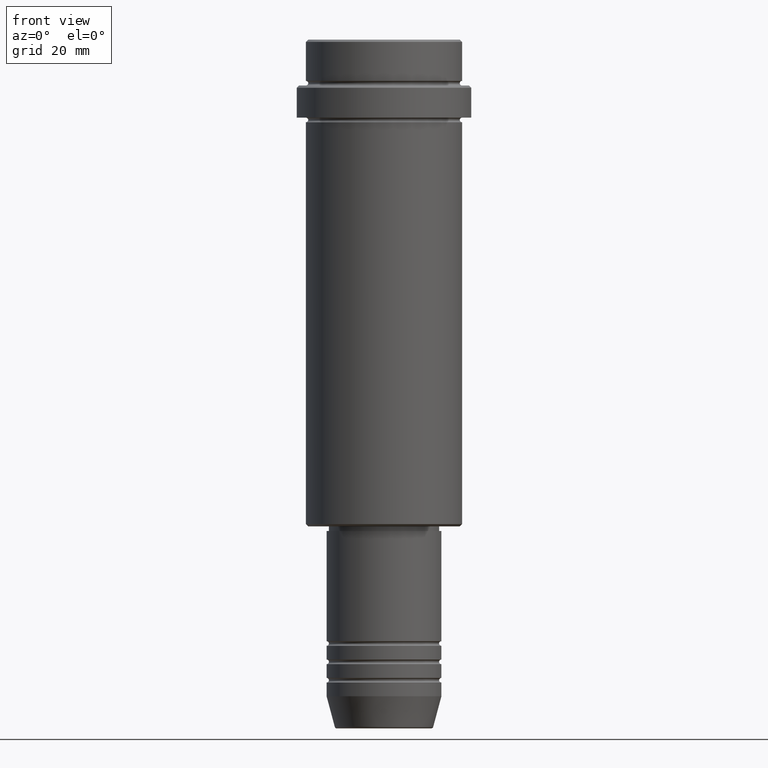
[diagram: clean part render]
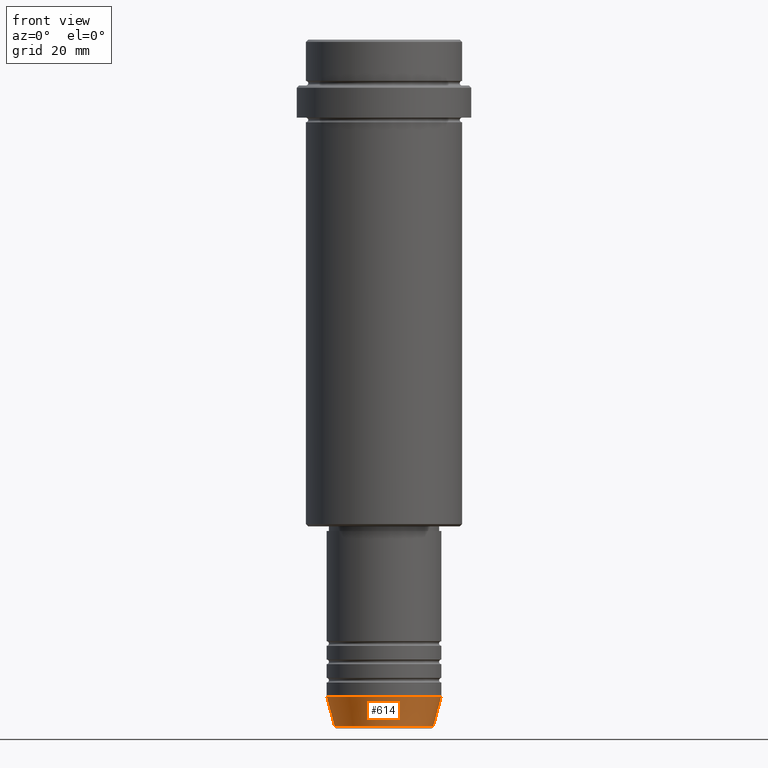
[diagram: same view with one face highlighted and labeled with its STEP entity id]
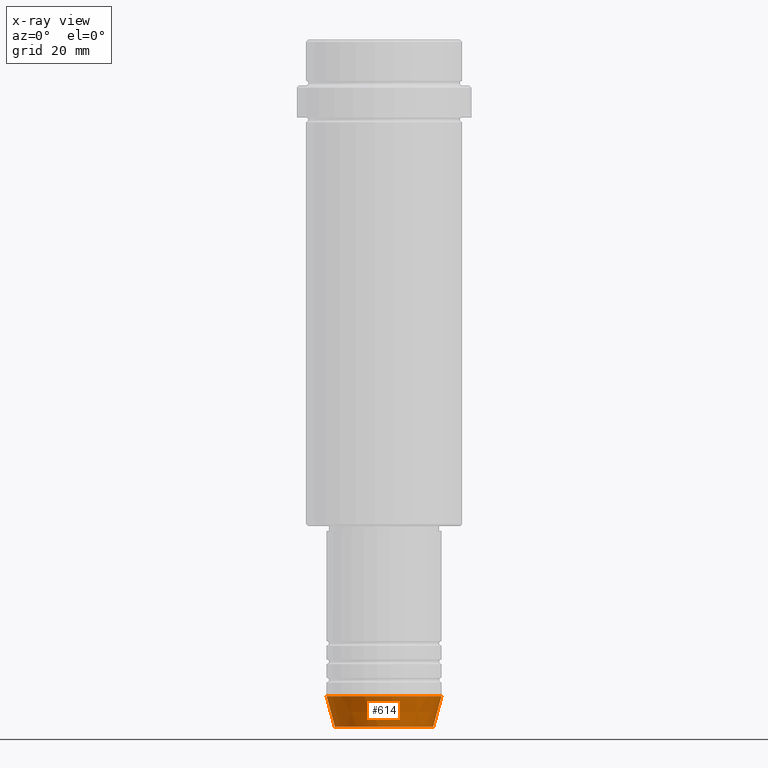
[diagram: x-ray of the same camera — body ghosted, the highlighted face saturated]
A machine part, front view. The second image highlights one B-rep face of the part: STEP entity #614.
The next image is the same camera in x-ray: the body ghosted, the highlighted face saturated — about 0% of this face is hidden behind the body in this view.
In plain terms, the highlighted conical surface has half-angle 15 deg.
Its self-contained STEP definition (entity closure, byte-faithful):
#18 = LINE ( 'NONE', #444, #143 ) ;
#27 = EDGE_LOOP ( 'NONE', ( #1320, #1271, #886, #752 ) ) ;
#132 = DIRECTION ( 'NONE',  ( -0.000000000000000000, -0.000000000000000000, 1.000000000000000000 ) ) ;
#140 = DIRECTION ( 'NONE',  ( 1.000000000000000000, 0.000000000000000000, 0.000000000000000000 ) ) ;
#143 = VECTOR ( 'NONE', #882, 1000.000000000000000 ) ;
#146 = CARTESIAN_POINT ( 'NONE',  ( -12.50000000000000000, 1.530808498934191521E-15, -143.0000000000000284 ) ) ;
#172 = LINE ( 'NONE', #845, #595 ) ;
#192 = CARTESIAN_POINT ( 'NONE',  ( -10.72365507213718416, 1.422038742429750121E-15, -149.6294095225512990 ) ) ;
#225 = VERTEX_POINT ( 'NONE', #926 ) ;
#232 = CIRCLE ( 'NONE', #302, 10.72365507213718416 ) ;
#302 = AXIS2_PLACEMENT_3D ( 'NONE', #496, #714, #1046 ) ;
#369 = EDGE_CURVE ( 'NONE', #1151, #1330, #232, .T. ) ;
#379 = DIRECTION ( 'NONE',  ( -0.2588190451025213501, 3.169619151431772337E-17, 0.9659258262890680902 ) ) ;
#382 = AXIS2_PLACEMENT_3D ( 'NONE', #852, #1210, #445 ) ;
#444 = CARTESIAN_POINT ( 'NONE',  ( 12.50000000000000000, 0.000000000000000000, -143.0000000000000284 ) ) ;
#445 = DIRECTION ( 'NONE',  ( 1.000000000000000000, 0.000000000000000000, 0.000000000000000000 ) ) ;
#496 = CARTESIAN_POINT ( 'NONE',  ( 0.000000000000000000, 0.000000000000000000, -149.6294095225512990 ) ) ;
#502 = CIRCLE ( 'NONE', #1307, 12.50000000000000000 ) ;
#510 = EDGE_CURVE ( 'NONE', #855, #225, #502, .T. ) ;
#595 = VECTOR ( 'NONE', #379, 1000.000000000000000 ) ;
#614 = ADVANCED_FACE ( 'NONE', ( #1407 ), #1129, .T. ) ;
#714 = DIRECTION ( 'NONE',  ( -0.000000000000000000, -0.000000000000000000, 1.000000000000000000 ) ) ;
#752 = ORIENTED_EDGE ( 'NONE', *, *, #510, .F. ) ;
#845 = CARTESIAN_POINT ( 'NONE',  ( -12.50000000000000000, 1.530808498934191521E-15, -143.0000000000000284 ) ) ;
#852 = CARTESIAN_POINT ( 'NONE',  ( 0.000000000000000000, 0.000000000000000000, -143.0000000000000284 ) ) ;
#855 = VERTEX_POINT ( 'NONE', #146 ) ;
#882 = DIRECTION ( 'NONE',  ( 0.2588190451025213501, 0.000000000000000000, 0.9659258262890680902 ) ) ;
#886 = ORIENTED_EDGE ( 'NONE', *, *, #1120, .T. ) ;
#901 = EDGE_CURVE ( 'NONE', #1151, #855, #172, .T. ) ;
#926 = CARTESIAN_POINT ( 'NONE',  ( 12.50000000000000000, 0.000000000000000000, -143.0000000000000284 ) ) ;
#1046 = DIRECTION ( 'NONE',  ( 1.000000000000000000, 0.000000000000000000, 0.000000000000000000 ) ) ;
#1100 = CARTESIAN_POINT ( 'NONE',  ( 0.000000000000000000, 0.000000000000000000, -143.0000000000000284 ) ) ;
#1120 = EDGE_CURVE ( 'NONE', #1330, #225, #18, .T. ) ;
#1129 = CONICAL_SURFACE ( 'NONE', #382, 12.50000000000000000, 0.2617993877991500740 ) ;
#1151 = VERTEX_POINT ( 'NONE', #192 ) ;
#1193 = CARTESIAN_POINT ( 'NONE',  ( 10.72365507213718416, 0.000000000000000000, -149.6294095225512990 ) ) ;
#1210 = DIRECTION ( 'NONE',  ( -0.000000000000000000, -0.000000000000000000, 1.000000000000000000 ) ) ;
#1271 = ORIENTED_EDGE ( 'NONE', *, *, #369, .T. ) ;
#1307 = AXIS2_PLACEMENT_3D ( 'NONE', #1100, #132, #140 ) ;
#1320 = ORIENTED_EDGE ( 'NONE', *, *, #901, .F. ) ;
#1330 = VERTEX_POINT ( 'NONE', #1193 ) ;
#1407 = FACE_OUTER_BOUND ( 'NONE', #27, .T. ) ;